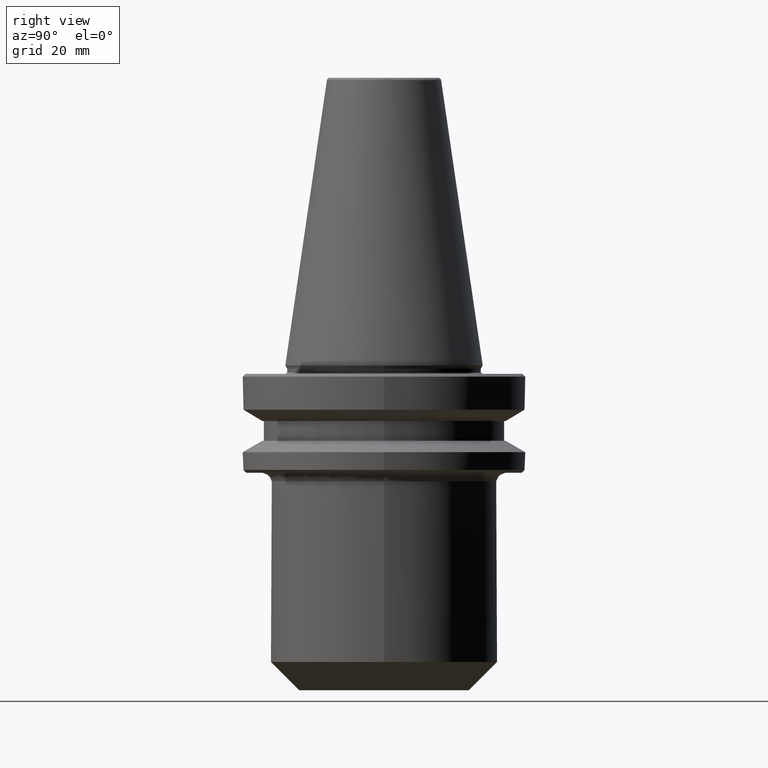
[diagram: clean part render]
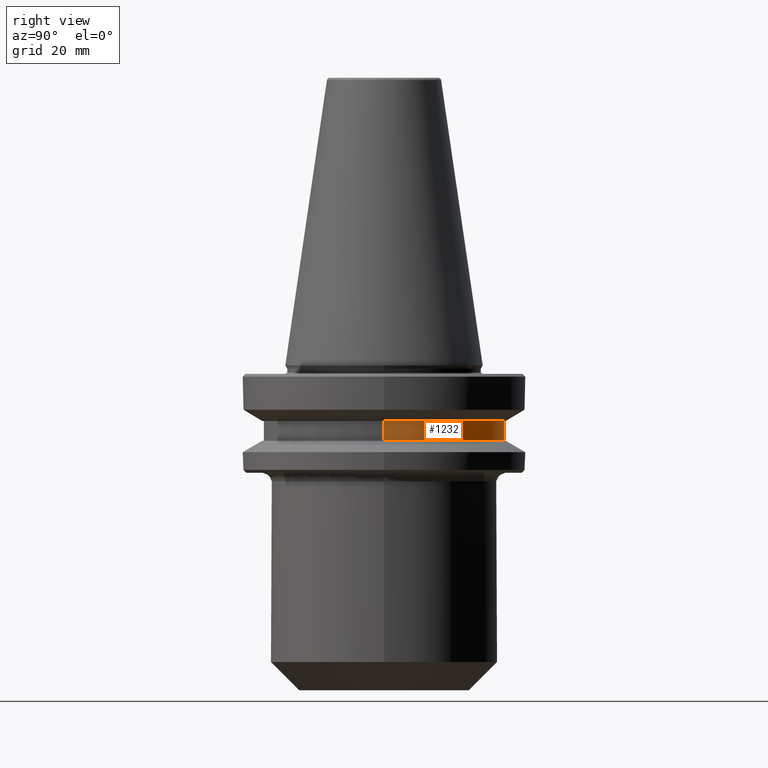
[diagram: same view with one face highlighted and labeled with its STEP entity id]
A machine part, right view. The second image highlights one B-rep face of the part: STEP entity #1232.
In plain terms, the highlighted cylindrical surface (partial cylindrical patch) has radius 42.5 mm, axis along (0, 0, 1).
Its self-contained STEP definition (entity closure, byte-faithful):
#8 = CARTESIAN_POINT ( 'NONE',  ( -42.50000000000000000, 5.204748896376250900E-015, -19.70000000000001000 ) ) ;
#86 = VECTOR ( 'NONE', #347, 1000.000000000000000 ) ;
#90 = DIRECTION ( 'NONE',  ( 1.000000000000000000, 0.0000000000000000000, 0.0000000000000000000 ) ) ;
#110 = VERTEX_POINT ( 'NONE', #1298 ) ;
#114 = ORIENTED_EDGE ( 'NONE', *, *, #600, .T. ) ;
#236 = CARTESIAN_POINT ( 'NONE',  ( 42.50000000000000000, 0.0000000000000000000, 124.5046326327850600 ) ) ;
#254 = LINE ( 'NONE', #848, #786 ) ;
#345 = ORIENTED_EDGE ( 'NONE', *, *, #547, .T. ) ;
#347 = DIRECTION ( 'NONE',  ( 0.0000000000000000000, 0.0000000000000000000, 1.000000000000000000 ) ) ;
#362 = AXIS2_PLACEMENT_3D ( 'NONE', #934, #933, #930 ) ;
#432 = LINE ( 'NONE', #236, #86 ) ;
#502 = DIRECTION ( 'NONE',  ( 1.000000000000000000, 0.0000000000000000000, 0.0000000000000000000 ) ) ;
#503 = DIRECTION ( 'NONE',  ( -0.0000000000000000000, -0.0000000000000000000, -1.000000000000000000 ) ) ;
#504 = CARTESIAN_POINT ( 'NONE',  ( 0.0000000000000000000, 0.0000000000000000000, -19.70000000000001000 ) ) ;
#542 = CARTESIAN_POINT ( 'NONE',  ( -42.50000000000000000, 5.204748896376250900E-015, -26.69999999999998900 ) ) ;
#547 = EDGE_CURVE ( 'NONE', #737, #1073, #254, .T. ) ;
#572 = EDGE_LOOP ( 'NONE', ( #114, #345, #575, #1311 ) ) ;
#575 = ORIENTED_EDGE ( 'NONE', *, *, #793, .T. ) ;
#600 = EDGE_CURVE ( 'NONE', #699, #737, #862, .T. ) ;
#601 = CARTESIAN_POINT ( 'NONE',  ( 42.50000000000000000, 0.0000000000000000000, -26.69999999999998900 ) ) ;
#685 = CIRCLE ( 'NONE', #1229, 42.50000000000000000 ) ;
#699 = VERTEX_POINT ( 'NONE', #601 ) ;
#737 = VERTEX_POINT ( 'NONE', #542 ) ;
#783 = CARTESIAN_POINT ( 'NONE',  ( 0.0000000000000000000, 0.0000000000000000000, 124.5046326327850600 ) ) ;
#786 = VECTOR ( 'NONE', #861, 1000.000000000000000 ) ;
#793 = EDGE_CURVE ( 'NONE', #1073, #110, #685, .T. ) ;
#848 = CARTESIAN_POINT ( 'NONE',  ( -42.50000000000000000, 5.204748896376250900E-015, 124.5046326327850600 ) ) ;
#861 = DIRECTION ( 'NONE',  ( 0.0000000000000000000, 0.0000000000000000000, 1.000000000000000000 ) ) ;
#862 = CIRCLE ( 'NONE', #362, 42.50000000000000000 ) ;
#924 = AXIS2_PLACEMENT_3D ( 'NONE', #783, #1004, #90 ) ;
#930 = DIRECTION ( 'NONE',  ( 1.000000000000000000, 0.0000000000000000000, 0.0000000000000000000 ) ) ;
#933 = DIRECTION ( 'NONE',  ( 0.0000000000000000000, 0.0000000000000000000, 1.000000000000000000 ) ) ;
#934 = CARTESIAN_POINT ( 'NONE',  ( 0.0000000000000000000, 0.0000000000000000000, -26.69999999999998900 ) ) ;
#1004 = DIRECTION ( 'NONE',  ( 0.0000000000000000000, 0.0000000000000000000, 1.000000000000000000 ) ) ;
#1073 = VERTEX_POINT ( 'NONE', #8 ) ;
#1093 = CYLINDRICAL_SURFACE ( 'NONE', #924, 42.50000000000000000 ) ;
#1140 = FACE_OUTER_BOUND ( 'NONE', #572, .T. ) ;
#1229 = AXIS2_PLACEMENT_3D ( 'NONE', #504, #503, #502 ) ;
#1232 = ADVANCED_FACE ( 'NONE', ( #1140 ), #1093, .T. ) ;
#1286 = EDGE_CURVE ( 'NONE', #699, #110, #432, .T. ) ;
#1298 = CARTESIAN_POINT ( 'NONE',  ( 42.50000000000000000, 0.0000000000000000000, -19.70000000000001000 ) ) ;
#1311 = ORIENTED_EDGE ( 'NONE', *, *, #1286, .F. ) ;